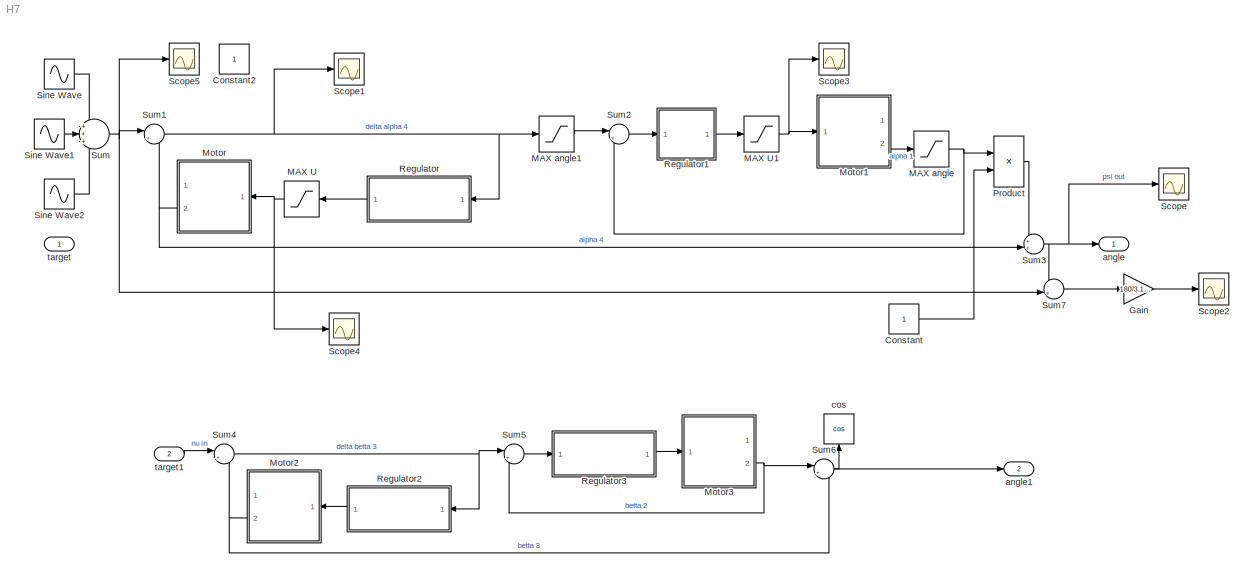
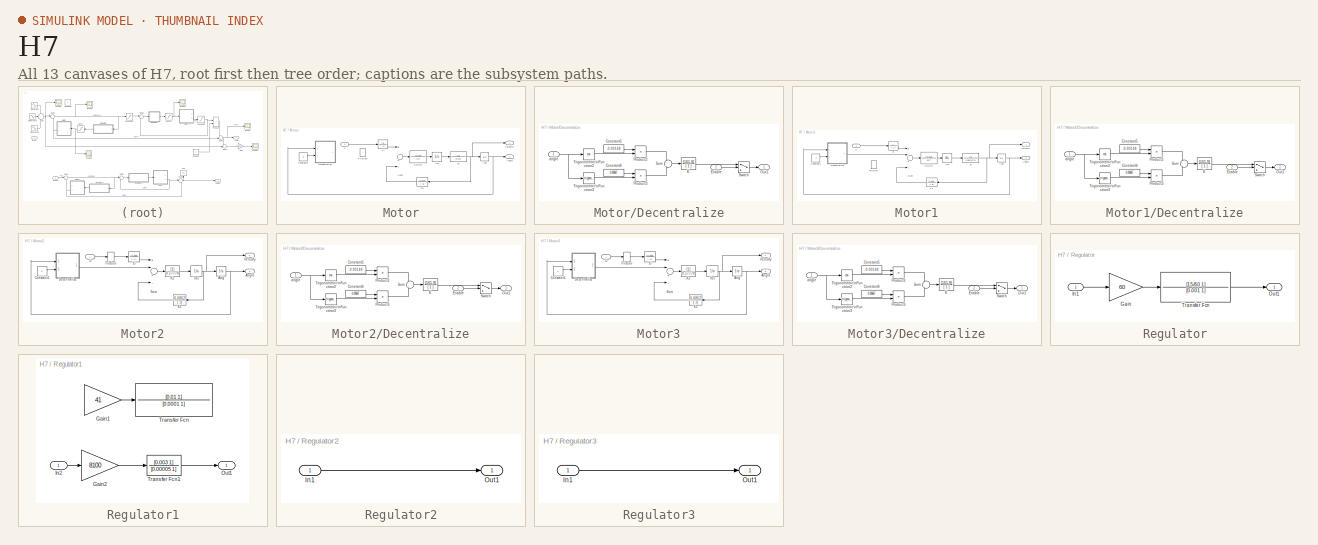
[diagram: thumbnail index - all 13 canvases of the model, root first then tree order]
MODEL H7
KIND model
BLOCK [Constant] Constant
  OutDataType = fixdt(1, 16)
  OutScaling = 2^0
BLOCK [Constant] Constant2
  OutDataType = fixdt(1, 16)
  OutScaling = 2^0
BLOCK [Gain] Gain
  Gain = 180/3.14*60*60
  OutDataType = fixdt(1, 16)
  OutDataTypeMode = Inherit via internal rule
  OutDataTypeStr = Inherit: Inherit via internal rule
  OutScaling = 2^0
  ParamDataTypeStr = Inherit: Inherit via internal rule
  ParameterDataType = fixdt(1, 16)
  ParameterDataTypeMode = Inherit via internal rule
  ParameterScaling = 2^0
  SaturateOnIntegerOverflow = off
BLOCK [Saturate] MAX U
  LowerLimit = -27
  UpperLimit = 27
BLOCK [Saturate] MAX U1
  LowerLimit = -12
  UpperLimit = 12
BLOCK [Saturate] MAX angle
  LowerLimit = -4/180*3.14
  UpperLimit = 4/180*3.14
BLOCK [Saturate] MAX angle1
  LowerLimit = -3/180*3.14
  UpperLimit = 3/180*3.14
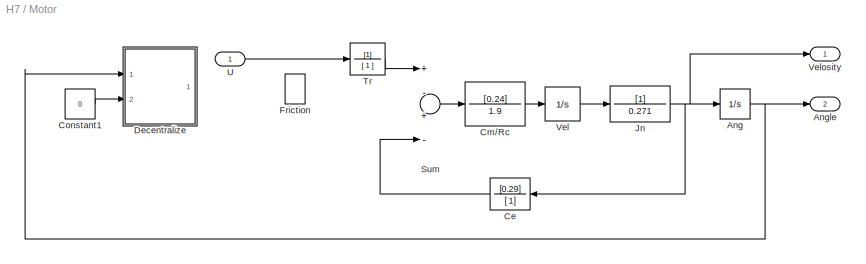
BLOCK [SubSystem] Motor
  FunctionWithSeparateData = off
  MaskHideContents = off
  MinAlgLoopOccurrences = off
  Opaque = off
  Ports = [1, 2]
  PropExecContextOutsideSubsystem = off
  RTWSystemCode = Auto
  RequestExecContextInheritance = off
  TreatAsAtomicUnit = on
BLOCK [Integrator] Motor/Ang
  Ports = [1, 1]
BLOCK [Outport] Motor/Angle
  IconDisplay = Port number
  OutDataType = fixdt(1, 16)
  OutScaling = 2^0
  Port = 2
BLOCK [TransferFcn] Motor/Ce
  Denominator = [ 1]
  Numerator = [0.29]
BLOCK [TransferFcn] Motor/Cm//Rc
  Denominator = 1.9
  Numerator = [0.24]
BLOCK [Constant] Motor/Constant1
  OutDataType = fixdt(1, 16)
  OutScaling = 2^0
  Value = 0
BLOCK [SubSystem] Motor/Decentralize
  FunctionWithSeparateData = off
  MaskHideContents = off
  MinAlgLoopOccurrences = off
  Opaque = off
  Ports = [2, 1]
  PropExecContextOutsideSubsystem = off
  RTWSystemCode = Auto
  RequestExecContextInheritance = off
  TreatAsAtomicUnit = on
BLOCK [Constant] Motor/Decentralize/Constant5
  Value = -0.00148
BLOCK [Constant] Motor/Decentralize/Constant6
  Value = 0.00667
BLOCK [Inport] Motor/Decentralize/Enable
  IconDisplay = Port number
  OutDataType = fixdt(1, 16)
  OutScaling = 2^0
  Port = 2
BLOCK [TransferFcn] Motor/Decentralize/K
  Denominator = [ 1 ]
  Numerator = [161.9]
BLOCK [Outport] Motor/Decentralize/Out1
  IconDisplay = Port number
  OutDataType = fixdt(1, 16)
  OutScaling = 2^0
BLOCK [Product] Motor/Decentralize/Product2
  InputSameDT = off
  OutDataTypeMode = Inherit via internal rule
  OutDataTypeStr = Inherit: Inherit via internal rule
  Ports = [2, 1]
  SaturateOnIntegerOverflow = off
BLOCK [Product] Motor/Decentralize/Product3
  InputSameDT = off
  OutDataTypeMode = Inherit via internal rule
  OutDataTypeStr = Inherit: Inherit via internal rule
  Ports = [2, 1]
  SaturateOnIntegerOverflow = off
BLOCK [Sum] Motor/Decentralize/Sum
  IconShape = round
  InputSameDT = off
  Inputs = +|-
  OutDataType = fixdt(1, 16)
  OutDataTypeMode = Inherit via internal rule
  OutDataTypeStr = Inherit: Inherit via internal rule
  OutScaling = 2^0
  Ports = [2, 1]
  SaturateOnIntegerOverflow = off
BLOCK [Switch] Motor/Decentralize/Switch
  Criteria = u2 > Threshold
  InputSameDT = off
  OutDataType = fixdt(1, 16)
  OutScaling = 2^0
  SaturateOnIntegerOverflow = off
BLOCK [Trigonometry] Motor/Decentralize/Trigonometric\nFunction2
  Operator = cos
  Ports = [1, 1]
BLOCK [Trigonometry] Motor/Decentralize/Trigonometric\nFunction3
  Ports = [1, 1]
BLOCK [Inport] Motor/Decentralize/angle
  IconDisplay = Port number
  OutDataType = fixdt(1, 16)
  OutScaling = 2^0
BLOCK [DeadZone] Motor/Friction
  LowerValue = -1.4
  UpperValue = 1.4
BLOCK [TransferFcn] Motor/Jn
  Denominator = 0.271
BLOCK [Sum] Motor/Sum
  InputSameDT = off
  Inputs = +-+-
  OutDataTypeMode = Inherit via internal rule
  OutDataTypeStr = Inherit: Inherit via internal rule
  Ports = [4, 1]
  SaturateOnIntegerOverflow = off
BLOCK [TransferFcn] Motor/Tr
  Denominator = [ 1 ]
BLOCK [Inport] Motor/U
  IconDisplay = Port number
  OutDataType = fixdt(1, 16)
  OutScaling = 2^0
BLOCK [Integrator] Motor/Vel
  Ports = [1, 1]
BLOCK [Outport] Motor/Velosity
  IconDisplay = Port number
  OutDataType = fixdt(1, 16)
  OutScaling = 2^0
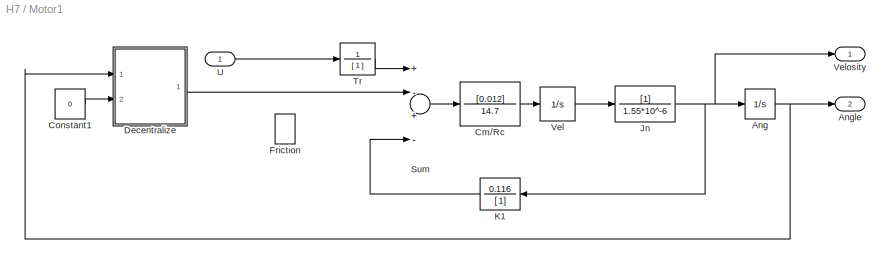
BLOCK [SubSystem] Motor1
  FunctionWithSeparateData = off
  MaskHideContents = off
  MinAlgLoopOccurrences = off
  Opaque = off
  Ports = [1, 2]
  PropExecContextOutsideSubsystem = off
  RTWSystemCode = Auto
  RequestExecContextInheritance = off
  TreatAsAtomicUnit = on
BLOCK [Integrator] Motor1/Ang
  Ports = [1, 1]
BLOCK [Outport] Motor1/Angle
  IconDisplay = Port number
  OutDataType = fixdt(1, 16)
  OutScaling = 2^0
  Port = 2
BLOCK [TransferFcn] Motor1/Cm//Rc
  Denominator = 14.7
  Numerator = [0.012]
BLOCK [Constant] Motor1/Constant1
  OutDataType = fixdt(1, 16)
  OutScaling = 2^0
  Value = 0
BLOCK [SubSystem] Motor1/Decentralize
  FunctionWithSeparateData = off
  MaskHideContents = off
  MinAlgLoopOccurrences = off
  Opaque = off
  Ports = [2, 1]
  PropExecContextOutsideSubsystem = off
  RTWSystemCode = Auto
  RequestExecContextInheritance = off
  TreatAsAtomicUnit = on
BLOCK [Constant] Motor1/Decentralize/Constant5
  Value = -0.00148
BLOCK [Constant] Motor1/Decentralize/Constant6
  Value = 0.00667
BLOCK [Inport] Motor1/Decentralize/Enable
  IconDisplay = Port number
  OutDataType = fixdt(1, 16)
  OutScaling = 2^0
  Port = 2
BLOCK [TransferFcn] Motor1/Decentralize/K
  Denominator = [ 1 ]
  Numerator = [161.9]
BLOCK [Outport] Motor1/Decentralize/Out1
  IconDisplay = Port number
  OutDataType = fixdt(1, 16)
  OutScaling = 2^0
BLOCK [Product] Motor1/Decentralize/Product2
  InputSameDT = off
  OutDataTypeMode = Inherit via internal rule
  OutDataTypeStr = Inherit: Inherit via internal rule
  Ports = [2, 1]
  SaturateOnIntegerOverflow = off
BLOCK [Product] Motor1/Decentralize/Product3
  InputSameDT = off
  OutDataTypeMode = Inherit via internal rule
  OutDataTypeStr = Inherit: Inherit via internal rule
  Ports = [2, 1]
  SaturateOnIntegerOverflow = off
BLOCK [Sum] Motor1/Decentralize/Sum
  IconShape = round
  InputSameDT = off
  Inputs = +|-
  OutDataType = fixdt(1, 16)
  OutDataTypeMode = Inherit via internal rule
  OutDataTypeStr = Inherit: Inherit via internal rule
  OutScaling = 2^0
  Ports = [2, 1]
  SaturateOnIntegerOverflow = off
BLOCK [Switch] Motor1/Decentralize/Switch
  Criteria = u2 > Threshold
  InputSameDT = off
  OutDataType = fixdt(1, 16)
  OutScaling = 2^0
  SaturateOnIntegerOverflow = off
BLOCK [Trigonometry] Motor1/Decentralize/Trigonometric\nFunction2
  Operator = cos
  Ports = [1, 1]
BLOCK [Trigonometry] Motor1/Decentralize/Trigonometric\nFunction3
  Ports = [1, 1]
BLOCK [Inport] Motor1/Decentralize/angle
  IconDisplay = Port number
  OutDataType = fixdt(1, 16)
  OutScaling = 2^0
BLOCK [DeadZone] Motor1/Friction
  LowerValue = -1.4
  UpperValue = 1.4
BLOCK [TransferFcn] Motor1/Jn
  Denominator = 1.55*10^-6
BLOCK [TransferFcn] Motor1/K1
  Denominator = [ 1]
  Numerator = 0.116
BLOCK [Sum] Motor1/Sum
  InputSameDT = off
  Inputs = +-+-
  OutDataTypeMode = Inherit via internal rule
  OutDataTypeStr = Inherit: Inherit via internal rule
  Ports = [4, 1]
  SaturateOnIntegerOverflow = off
BLOCK [TransferFcn] Motor1/Tr
  Denominator = [ 1 ]
  Numerator = 1
BLOCK [Inport] Motor1/U
  IconDisplay = Port number
  OutDataType = fixdt(1, 16)
  OutScaling = 2^0
BLOCK [Integrator] Motor1/Vel
  Ports = [1, 1]
BLOCK [Outport] Motor1/Velosity
  IconDisplay = Port number
  OutDataType = fixdt(1, 16)
  OutScaling = 2^0
BLOCK [SubSystem] Motor2
  FunctionWithSeparateData = off
  MaskHideContents = off
  MinAlgLoopOccurrences = off
  Opaque = off
  Ports = [1, 2]
  PropExecContextOutsideSubsystem = off
  RTWSystemCode = Auto
  RequestExecContextInheritance = off
  TreatAsAtomicUnit = on
BLOCK [Integrator] Motor2/Ang
  Ports = [1, 1]
BLOCK [Outport] Motor2/Angle
  IconDisplay = Port number
  OutDataType = fixdt(1, 16)
  OutScaling = 2^0
  Port = 2
BLOCK [Constant] Motor2/Constant1
  OutDataType = fixdt(1, 16)
  OutScaling = 2^0
BLOCK [SubSystem] Motor2/Decentralize
  FunctionWithSeparateData = off
  MaskHideContents = off
  MinAlgLoopOccurrences = off
  Opaque = off
  Ports = [2, 1]
  PropExecContextOutsideSubsystem = off
  RTWSystemCode = Auto
  RequestExecContextInheritance = off
  TreatAsAtomicUnit = on
BLOCK [Constant] Motor2/Decentralize/Constant5
  Value = -0.00148
BLOCK [Constant] Motor2/Decentralize/Constant6
  Value = 0.00667
BLOCK [Inport] Motor2/Decentralize/Enable
  IconDisplay = Port number
  OutDataType = fixdt(1, 16)
  OutScaling = 2^0
  Port = 2
BLOCK [TransferFcn] Motor2/Decentralize/K
  Denominator = [ 1 ]
  Numerator = [161.9]
BLOCK [Outport] Motor2/Decentralize/Out1
  IconDisplay = Port number
  OutDataType = fixdt(1, 16)
  OutScaling = 2^0
BLOCK [Product] Motor2/Decentralize/Product2
  InputSameDT = off
  OutDataTypeMode = Inherit via internal rule
  OutDataTypeStr = Inherit: Inherit via internal rule
  Ports = [2, 1]
  SaturateOnIntegerOverflow = off
BLOCK [Product] Motor2/Decentralize/Product3
  InputSameDT = off
  OutDataTypeMode = Inherit via internal rule
  OutDataTypeStr = Inherit: Inherit via internal rule
  Ports = [2, 1]
  SaturateOnIntegerOverflow = off
BLOCK [Sum] Motor2/Decentralize/Sum
  IconShape = round
  InputSameDT = off
  Inputs = +|-
  OutDataType = fixdt(1, 16)
  OutDataTypeMode = Inherit via internal rule
  OutDataTypeStr = Inherit: Inherit via internal rule
  OutScaling = 2^0
  Ports = [2, 1]
  SaturateOnIntegerOverflow = off
BLOCK [Switch] Motor2/Decentralize/Switch
  Criteria = u2 > Threshold
  InputSameDT = off
  OutDataType = fixdt(1, 16)
  OutScaling = 2^0
  SaturateOnIntegerOverflow = off
BLOCK [Trigonometry] Motor2/Decentralize/Trigonometric\nFunction2
  Operator = cos
  Ports = [1, 1]
BLOCK [Trigonometry] Motor2/Decentralize/Trigonometric\nFunction3
  Ports = [1, 1]
BLOCK [Inport] Motor2/Decentralize/angle
  IconDisplay = Port number
  OutDataType = fixdt(1, 16)
  OutScaling = 2^0
BLOCK [DeadZone] Motor2/Friction
  LowerValue = -1.4
  UpperValue = 1.4
BLOCK [TransferFcn] Motor2/K1
  Denominator = [ 1]
  Numerator = [0.6802]
BLOCK [TransferFcn] Motor2/K2
  Denominator = 0.17778
BLOCK [Sum] Motor2/Sum
  InputSameDT = off
  Inputs = +-+-
  OutDataTypeMode = Inherit via internal rule
  OutDataTypeStr = Inherit: Inherit via internal rule
  Ports = [4, 1]
  SaturateOnIntegerOverflow = off
BLOCK [TransferFcn] Motor2/Tr
  Denominator = [ 1 ]
  Numerator = [0.356]
BLOCK [Inport] Motor2/U
  IconDisplay = Port number
  OutDataType = fixdt(1, 16)
  OutScaling = 2^0
BLOCK [Integrator] Motor2/Vel
  Ports = [1, 1]
BLOCK [Outport] Motor2/Velosity
  IconDisplay = Port number
  OutDataType = fixdt(1, 16)
  OutScaling = 2^0
BLOCK [SubSystem] Motor3
  FunctionWithSeparateData = off
  MaskHideContents = off
  MinAlgLoopOccurrences = off
  Opaque = off
  Ports = [1, 2]
  PropExecContextOutsideSubsystem = off
  RTWSystemCode = Auto
  RequestExecContextInheritance = off
  TreatAsAtomicUnit = on
BLOCK [Integrator] Motor3/Ang
  Ports = [1, 1]
BLOCK [Outport] Motor3/Angle
  IconDisplay = Port number
  OutDataType = fixdt(1, 16)
  OutScaling = 2^0
  Port = 2
BLOCK [Constant] Motor3/Constant1
  OutDataType = fixdt(1, 16)
  OutScaling = 2^0
BLOCK [SubSystem] Motor3/Decentralize
  FunctionWithSeparateData = off
  MaskHideContents = off
  MinAlgLoopOccurrences = off
  Opaque = off
  Ports = [2, 1]
  PropExecContextOutsideSubsystem = off
  RTWSystemCode = Auto
  RequestExecContextInheritance = off
  TreatAsAtomicUnit = on
BLOCK [Constant] Motor3/Decentralize/Constant5
  Value = -0.00148
BLOCK [Constant] Motor3/Decentralize/Constant6
  Value = 0.00667
BLOCK [Inport] Motor3/Decentralize/Enable
  IconDisplay = Port number
  OutDataType = fixdt(1, 16)
  OutScaling = 2^0
  Port = 2
BLOCK [TransferFcn] Motor3/Decentralize/K
  Denominator = [ 1 ]
  Numerator = [161.9]
BLOCK [Outport] Motor3/Decentralize/Out1
  IconDisplay = Port number
  OutDataType = fixdt(1, 16)
  OutScaling = 2^0
BLOCK [Product] Motor3/Decentralize/Product2
  InputSameDT = off
  OutDataTypeMode = Inherit via internal rule
  OutDataTypeStr = Inherit: Inherit via internal rule
  Ports = [2, 1]
  SaturateOnIntegerOverflow = off
BLOCK [Product] Motor3/Decentralize/Product3
  InputSameDT = off
  OutDataTypeMode = Inherit via internal rule
  OutDataTypeStr = Inherit: Inherit via internal rule
  Ports = [2, 1]
  SaturateOnIntegerOverflow = off
BLOCK [Sum] Motor3/Decentralize/Sum
  IconShape = round
  InputSameDT = off
  Inputs = +|-
  OutDataType = fixdt(1, 16)
  OutDataTypeMode = Inherit via internal rule
  OutDataTypeStr = Inherit: Inherit via internal rule
  OutScaling = 2^0
  Ports = [2, 1]
  SaturateOnIntegerOverflow = off
BLOCK [Switch] Motor3/Decentralize/Switch
  Criteria = u2 > Threshold
  InputSameDT = off
  OutDataType = fixdt(1, 16)
  OutScaling = 2^0
  SaturateOnIntegerOverflow = off
BLOCK [Trigonometry] Motor3/Decentralize/Trigonometric\nFunction2
  Operator = cos
  Ports = [1, 1]
BLOCK [Trigonometry] Motor3/Decentralize/Trigonometric\nFunction3
  Ports = [1, 1]
BLOCK [Inport] Motor3/Decentralize/angle
  IconDisplay = Port number
  OutDataType = fixdt(1, 16)
  OutScaling = 2^0
BLOCK [DeadZone] Motor3/Friction
  LowerValue = -1.4
  UpperValue = 1.4
BLOCK [TransferFcn] Motor3/K1
  Denominator = [ 1]
  Numerator = [0.6802]
BLOCK [TransferFcn] Motor3/K2
  Denominator = 0.17778
BLOCK [Sum] Motor3/Sum
  InputSameDT = off
  Inputs = +-+-
  OutDataTypeMode = Inherit via internal rule
  OutDataTypeStr = Inherit: Inherit via internal rule
  Ports = [4, 1]
  SaturateOnIntegerOverflow = off
BLOCK [TransferFcn] Motor3/Tr
  Denominator = [ 1 ]
  Numerator = [0.356]
BLOCK [Inport] Motor3/U
  IconDisplay = Port number
  OutDataType = fixdt(1, 16)
  OutScaling = 2^0
BLOCK [Integrator] Motor3/Vel
  Ports = [1, 1]
BLOCK [Outport] Motor3/Velosity
  IconDisplay = Port number
  OutDataType = fixdt(1, 16)
  OutScaling = 2^0
BLOCK [Product] Product
  InputSameDT = off
  OutDataType = fixdt(1, 16)
  OutDataTypeMode = Inherit via internal rule
  OutDataTypeStr = Inherit: Inherit via internal rule
  OutScaling = 2^0
  Ports = [2, 1]
  SaturateOnIntegerOverflow = off
BLOCK [SubSystem] Regulator
  FunctionWithSeparateData = off
  MaskHideContents = off
  MinAlgLoopOccurrences = off
  Opaque = off
  Ports = [1, 1]
  PropExecContextOutsideSubsystem = off
  RTWSystemCode = Auto
  RequestExecContextInheritance = off
BLOCK [Gain] Regulator/Gain
  Gain = 60
  OutDataType = fixdt(1, 16)
  OutDataTypeMode = Inherit via internal rule
  OutDataTypeStr = Inherit: Inherit via internal rule
  OutScaling = 2^0
  ParamDataTypeStr = Inherit: Inherit via internal rule
  ParameterDataType = fixdt(1, 16)
  ParameterDataTypeMode = Inherit via internal rule
  ParameterScaling = 2^0
  SaturateOnIntegerOverflow = off
BLOCK [Inport] Regulator/In1
  IconDisplay = Port number
  OutDataType = fixdt(1, 16)
  OutScaling = 2^0
BLOCK [Outport] Regulator/Out1
  IconDisplay = Port number
  OutDataType = fixdt(1, 16)
  OutScaling = 2^0
BLOCK [TransferFcn] Regulator/Transfer Fcn
  Denominator = [0.001 1]
  Numerator = [15/60 1]
BLOCK [SubSystem] Regulator1
  FunctionWithSeparateData = off
  MaskHideContents = off
  MinAlgLoopOccurrences = off
  Opaque = off
  Ports = [1, 1]
  PropExecContextOutsideSubsystem = off
  RTWSystemCode = Auto
  RequestExecContextInheritance = off
BLOCK [Gain] Regulator1/Gain1
  Gain = 41
  OutDataType = fixdt(1, 16)
  OutDataTypeMode = Inherit via internal rule
  OutDataTypeStr = Inherit: Inherit via internal rule
  OutScaling = 2^0
  ParamDataTypeStr = Inherit: Inherit via internal rule
  ParameterDataType = fixdt(1, 16)
  ParameterDataTypeMode = Inherit via internal rule
  ParameterScaling = 2^0
  SaturateOnIntegerOverflow = off
BLOCK [Gain] Regulator1/Gain2
  Gain = 8100
  OutDataType = fixdt(1, 16)
  OutDataTypeMode = Inherit via internal rule
  OutDataTypeStr = Inherit: Inherit via internal rule
  OutScaling = 2^0
  ParamDataTypeStr = Inherit: Inherit via internal rule
  ParameterDataType = fixdt(1, 16)
  ParameterDataTypeMode = Inherit via internal rule
  ParameterScaling = 2^0
  SaturateOnIntegerOverflow = off
BLOCK [Inport] Regulator1/In2
  IconDisplay = Port number
  OutDataType = fixdt(1, 16)
  OutScaling = 2^0
BLOCK [Outport] Regulator1/Out1
  IconDisplay = Port number
  OutDataType = fixdt(1, 16)
  OutScaling = 2^0
BLOCK [TransferFcn] Regulator1/Transfer Fcn
  Denominator = [0.0001 1]
  Numerator = [0.01 1]
BLOCK [TransferFcn] Regulator1/Transfer Fcn1
  Denominator = [0.00005 1]
  Numerator = [0.003 1]
BLOCK [SubSystem] Regulator2
  FunctionWithSeparateData = off
  MaskHideContents = off
  MinAlgLoopOccurrences = off
  Opaque = off
  Ports = [1, 1]
  PropExecContextOutsideSubsystem = off
  RTWSystemCode = Auto
  RequestExecContextInheritance = off
BLOCK [Inport] Regulator2/In1
  IconDisplay = Port number
  OutDataType = fixdt(1, 16)
  OutScaling = 2^0
BLOCK [Outport] Regulator2/Out1
  IconDisplay = Port number
  OutDataType = fixdt(1, 16)
  OutScaling = 2^0
BLOCK [SubSystem] Regulator3
  FunctionWithSeparateData = off
  MaskHideContents = off
  MinAlgLoopOccurrences = off
  Opaque = off
  Ports = [1, 1]
  PropExecContextOutsideSubsystem = off
  RTWSystemCode = Auto
  RequestExecContextInheritance = off
BLOCK [Inport] Regulator3/In1
  IconDisplay = Port number
  OutDataType = fixdt(1, 16)
  OutScaling = 2^0
BLOCK [Outport] Regulator3/Out1
  IconDisplay = Port number
  OutDataType = fixdt(1, 16)
  OutScaling = 2^0
BLOCK [Scope] Scope
  DataFormat = StructureWithTime
  Floating = off
  MaxDataPoints = 50000
  NumInputPorts = 1
  Ports = [1]
  SampleTime = 0
  YMax = 0.875
  YMin = 0.805
  ZoomMode = yonly
BLOCK [Scope] Scope1
  DataFormat = StructureWithTime
  Floating = off
  MaxDataPoints = 50000
  NumInputPorts = 1
  Ports = [1]
  SampleTime = 0
  SaveName = ScopeData1
  YMax = 0.025
  YMin = -0.375
  ZoomMode = yonly
BLOCK [Scope] Scope2
  DataFormat = StructureWithTime
  Floating = off
  MaxDataPoints = 50000
  NumInputPorts = 1
  Ports = [1]
  SampleTime = 0
  SaveName = ScopeData2
  YMax = 65000
  YMin = 25000
  ZoomMode = yonly
BLOCK [Scope] Scope3
  DataFormat = StructureWithTime
  Floating = off
  MaxDataPoints = 50000
  NumInputPorts = 1
  Ports = [1]
  SampleTime = 0
  SaveName = ScopeData3
  YMax = -27
  YMin = -27
  ZoomMode = xonly
BLOCK [Scope] Scope4
  DataFormat = StructureWithTime
  Floating = off
  MaxDataPoints = 50000
  NumInputPorts = 1
  Ports = [1]
  SampleTime = 0
  SaveName = ScopeData4
  YMax = 0.025
  YMin = -0.375
  ZoomMode = yonly
BLOCK [Scope] Scope5
  DataFormat = StructureWithTime
  Floating = off
  MaxDataPoints = 50000
  NumInputPorts = 1
  Ports = [1]
  SampleTime = 0
  SaveName = ScopeData5
  YMax = 0.025
  YMin = -0.375
  ZoomMode = yonly
BLOCK [Sin] Sine Wave
  Amplitude = 0.8
  Bias = 0
  Frequency = 1
  Offset = 0
  Phase = 0
  Ports = [0, 1]
  SampleTime = 0
  Samples = 10
BLOCK [Sin] Sine Wave1
  Amplitude = 1/60
  Bias = 0
  Frequency = 2*pi*14
  Offset = 0
  Phase = 0
  Ports = [0, 1]
  SampleTime = 0
  Samples = 10
BLOCK [Sin] Sine Wave2
  Amplitude = 1/60
  Bias = 0
  Frequency = 2*pi*4
  Offset = 0
  Phase = 0
  Ports = [0, 1]
  SampleTime = 0
  Samples = 10
BLOCK [Sum] Sum
  IconShape = round
  InputSameDT = off
  Inputs = +++
  OutDataType = fixdt(1, 16)
  OutDataTypeMode = Inherit via internal rule
  OutDataTypeStr = Inherit: Inherit via internal rule
  OutScaling = 2^0
  Ports = [3, 1]
  SaturateOnIntegerOverflow = off
BLOCK [Sum] Sum1
  IconShape = round
  InputSameDT = off
  Inputs = |+-
  OutDataType = fixdt(1, 16)
  OutDataTypeMode = Inherit via internal rule
  OutDataTypeStr = Inherit: Inherit via internal rule
  OutScaling = 2^0
  Ports = [2, 1]
  SaturateOnIntegerOverflow = off
BLOCK [Sum] Sum2
  IconShape = round
  InputSameDT = off
  Inputs = |+-
  OutDataType = fixdt(1, 16)
  OutDataTypeMode = Inherit via internal rule
  OutDataTypeStr = Inherit: Inherit via internal rule
  OutScaling = 2^0
  Ports = [2, 1]
  SaturateOnIntegerOverflow = off
BLOCK [Sum] Sum3
  IconShape = round
  InputSameDT = off
  Inputs = ++|
  OutDataType = fixdt(1, 16)
  OutDataTypeMode = Inherit via internal rule
  OutDataTypeStr = Inherit: Inherit via internal rule
  OutScaling = 2^0
  Ports = [2, 1]
  SaturateOnIntegerOverflow = off
BLOCK [Sum] Sum4
  IconShape = round
  InputSameDT = off
  Inputs = |+-
  OutDataType = fixdt(1, 16)
  OutDataTypeMode = Inherit via internal rule
  OutDataTypeStr = Inherit: Inherit via internal rule
  OutScaling = 2^0
  Ports = [2, 1]
  SaturateOnIntegerOverflow = off
BLOCK [Sum] Sum5
  IconShape = round
  InputSameDT = off
  Inputs = |+-
  OutDataType = fixdt(1, 16)
  OutDataTypeMode = Inherit via internal rule
  OutDataTypeStr = Inherit: Inherit via internal rule
  OutScaling = 2^0
  Ports = [2, 1]
  SaturateOnIntegerOverflow = off
BLOCK [Sum] Sum6
  IconShape = round
  InputSameDT = off
  Inputs = |++
  OutDataType = fixdt(1, 16)
  OutDataTypeMode = Inherit via internal rule
  OutDataTypeStr = Inherit: Inherit via internal rule
  OutScaling = 2^0
  Ports = [2, 1]
  SaturateOnIntegerOverflow = off
BLOCK [Sum] Sum7
  IconShape = round
  InputSameDT = off
  Inputs = -+|
  OutDataType = fixdt(1, 16)
  OutDataTypeMode = Inherit via internal rule
  OutDataTypeStr = Inherit: Inherit via internal rule
  OutScaling = 2^0
  Ports = [2, 1]
  SaturateOnIntegerOverflow = off
BLOCK [Outport] angle
  IconDisplay = Port number
  OutDataType = fixdt(1, 16)
  OutScaling = 2^0
BLOCK [Outport] angle1
  IconDisplay = Port number
  OutDataType = fixdt(1, 16)
  OutScaling = 2^0
  Port = 2
BLOCK [Trigonometry] cos
  Operator = cos
  Ports = [1, 1]
BLOCK [Inport] target
  IconDisplay = Port number
  OutDataType = fixdt(1, 16)
  OutScaling = 2^0
BLOCK [Inport] target1
  IconDisplay = Port number
  OutDataType = fixdt(1, 16)
  OutScaling = 2^0
  Port = 2
LINE Constant:1 -> Product:2
LINE Gain:1 -> Scope2:1
NET MAX U1:1 -> Motor1:1, Scope3:1
NET MAX U:1 -> Motor:1, Scope4:1
LINE MAX angle1:1 -> Sum2:1
NET MAX angle:1 -> Product:1, Sum2:2
NET Motor/Ang:1 -> Motor/Angle:1, Motor/Decentralize:1
LINE Motor/Ce:1 -> Motor/Sum:4
LINE Motor/Cm//Rc:1 -> Motor/Vel:1
LINE Motor/Constant1:1 -> Motor/Decentralize:2
LINE Motor/Decentralize/Constant5:1 -> Motor/Decentralize/Product2:1
LINE Motor/Decentralize/Constant6:1 -> Motor/Decentralize/Product3:1
LINE Motor/Decentralize/Enable:1 -> Motor/Decentralize/Switch:2
LINE Motor/Decentralize/K:1 -> Motor/Decentralize/Switch:1
LINE Motor/Decentralize/Product2:1 -> Motor/Decentralize/Sum:1
LINE Motor/Decentralize/Product3:1 -> Motor/Decentralize/Sum:2
LINE Motor/Decentralize/Sum:1 -> Motor/Decentralize/K:1
LINE Motor/Decentralize/Switch:1 -> Motor/Decentralize/Out1:1
LINE Motor/Decentralize/Trigonometric\nFunction2:1 -> Motor/Decentralize/Product2:2
LINE Motor/Decentralize/Trigonometric\nFunction3:1 -> Motor/Decentralize/Product3:2
NET Motor/Decentralize/angle:1 -> Motor/Decentralize/Trigonometric\nFunction2:1, Motor/Decentralize/Trigonometric\nFunction3:1
NET Motor/Jn:1 -> Motor/Ang:1, Motor/Ce:1, Motor/Velosity:1
LINE Motor/Sum:1 -> Motor/Cm//Rc:1
LINE Motor/Tr:1 -> Motor/Sum:1
LINE Motor/U:1 -> Motor/Tr:1
LINE Motor/Vel:1 -> Motor/Jn:1
NET Motor1/Ang:1 -> Motor1/Angle:1, Motor1/Decentralize:1
LINE Motor1/Cm//Rc:1 -> Motor1/Vel:1
LINE Motor1/Constant1:1 -> Motor1/Decentralize:2
LINE Motor1/Decentralize/Constant5:1 -> Motor1/Decentralize/Product2:1
LINE Motor1/Decentralize/Constant6:1 -> Motor1/Decentralize/Product3:1
LINE Motor1/Decentralize/Enable:1 -> Motor1/Decentralize/Switch:2
LINE Motor1/Decentralize/K:1 -> Motor1/Decentralize/Switch:1
LINE Motor1/Decentralize/Product2:1 -> Motor1/Decentralize/Sum:1
LINE Motor1/Decentralize/Product3:1 -> Motor1/Decentralize/Sum:2
LINE Motor1/Decentralize/Sum:1 -> Motor1/Decentralize/K:1
LINE Motor1/Decentralize/Switch:1 -> Motor1/Decentralize/Out1:1
LINE Motor1/Decentralize/Trigonometric\nFunction2:1 -> Motor1/Decentralize/Product2:2
LINE Motor1/Decentralize/Trigonometric\nFunction3:1 -> Motor1/Decentralize/Product3:2
NET Motor1/Decentralize/angle:1 -> Motor1/Decentralize/Trigonometric\nFunction2:1, Motor1/Decentralize/Trigonometric\nFunction3:1
LINE Motor1/Decentralize:1 -> Motor1/Sum:2
NET Motor1/Jn:1 -> Motor1/Ang:1, Motor1/K1:1, Motor1/Velosity:1
LINE Motor1/K1:1 -> Motor1/Sum:4
LINE Motor1/Sum:1 -> Motor1/Cm//Rc:1
LINE Motor1/Tr:1 -> Motor1/Sum:1
LINE Motor1/U:1 -> Motor1/Tr:1
LINE Motor1/Vel:1 -> Motor1/Jn:1
LINE Motor1:2 -> MAX angle:1
NET Motor2/Ang:1 -> Motor2/Angle:1, Motor2/Decentralize:1
LINE Motor2/Constant1:1 -> Motor2/Decentralize:2
LINE Motor2/Decentralize/Constant5:1 -> Motor2/Decentralize/Product2:1
LINE Motor2/Decentralize/Constant6:1 -> Motor2/Decentralize/Product3:1
LINE Motor2/Decentralize/Enable:1 -> Motor2/Decentralize/Switch:2
LINE Motor2/Decentralize/K:1 -> Motor2/Decentralize/Switch:1
LINE Motor2/Decentralize/Product2:1 -> Motor2/Decentralize/Sum:1
LINE Motor2/Decentralize/Product3:1 -> Motor2/Decentralize/Sum:2
LINE Motor2/Decentralize/Sum:1 -> Motor2/Decentralize/K:1
LINE Motor2/Decentralize/Switch:1 -> Motor2/Decentralize/Out1:1
LINE Motor2/Decentralize/Trigonometric\nFunction2:1 -> Motor2/Decentralize/Product2:2
LINE Motor2/Decentralize/Trigonometric\nFunction3:1 -> Motor2/Decentralize/Product3:2
NET Motor2/Decentralize/angle:1 -> Motor2/Decentralize/Trigonometric\nFunction2:1, Motor2/Decentralize/Trigonometric\nFunction3:1
LINE Motor2/Decentralize:1 -> Motor2/Sum:2
LINE Motor2/Friction:1 -> Motor2/Tr:1
LINE Motor2/K1:1 -> Motor2/Sum:4
LINE Motor2/K2:1 -> Motor2/Vel:1
LINE Motor2/Sum:1 -> Motor2/K2:1
LINE Motor2/Tr:1 -> Motor2/Sum:1
LINE Motor2/U:1 -> Motor2/Friction:1
NET Motor2/Vel:1 -> Motor2/Ang:1, Motor2/K1:1, Motor2/Velosity:1
NET Motor2:2 -> Sum4:2, Sum6:2
NET Motor3/Ang:1 -> Motor3/Angle:1, Motor3/Decentralize:1
LINE Motor3/Constant1:1 -> Motor3/Decentralize:2
LINE Motor3/Decentralize/Constant5:1 -> Motor3/Decentralize/Product2:1
LINE Motor3/Decentralize/Constant6:1 -> Motor3/Decentralize/Product3:1
LINE Motor3/Decentralize/Enable:1 -> Motor3/Decentralize/Switch:2
LINE Motor3/Decentralize/K:1 -> Motor3/Decentralize/Switch:1
LINE Motor3/Decentralize/Product2:1 -> Motor3/Decentralize/Sum:1
LINE Motor3/Decentralize/Product3:1 -> Motor3/Decentralize/Sum:2
LINE Motor3/Decentralize/Sum:1 -> Motor3/Decentralize/K:1
LINE Motor3/Decentralize/Switch:1 -> Motor3/Decentralize/Out1:1
LINE Motor3/Decentralize/Trigonometric\nFunction2:1 -> Motor3/Decentralize/Product2:2
LINE Motor3/Decentralize/Trigonometric\nFunction3:1 -> Motor3/Decentralize/Product3:2
NET Motor3/Decentralize/angle:1 -> Motor3/Decentralize/Trigonometric\nFunction2:1, Motor3/Decentralize/Trigonometric\nFunction3:1
LINE Motor3/Decentralize:1 -> Motor3/Sum:2
LINE Motor3/Friction:1 -> Motor3/Tr:1
LINE Motor3/K1:1 -> Motor3/Sum:4
LINE Motor3/K2:1 -> Motor3/Vel:1
LINE Motor3/Sum:1 -> Motor3/K2:1
LINE Motor3/Tr:1 -> Motor3/Sum:1
LINE Motor3/U:1 -> Motor3/Friction:1
NET Motor3/Vel:1 -> Motor3/Ang:1, Motor3/K1:1, Motor3/Velosity:1
NET Motor3:2 -> Sum5:2, Sum6:1
NET Motor:2 -> Sum1:2, Sum3:2
LINE Product:1 -> Sum3:1
LINE Regulator/Gain:1 -> Regulator/Transfer Fcn:1
LINE Regulator/In1:1 -> Regulator/Gain:1
LINE Regulator/Transfer Fcn:1 -> Regulator/Out1:1
LINE Regulator1/Gain1:1 -> Regulator1/Transfer Fcn:1
LINE Regulator1/Gain2:1 -> Regulator1/Transfer Fcn1:1
LINE Regulator1/In2:1 -> Regulator1/Gain2:1
LINE Regulator1/Transfer Fcn1:1 -> Regulator1/Out1:1
LINE Regulator1:1 -> MAX U1:1
LINE Regulator2/In1:1 -> Regulator2/Out1:1
LINE Regulator2:1 -> Motor2:1
LINE Regulator3/In1:1 -> Regulator3/Out1:1
LINE Regulator3:1 -> Motor3:1
LINE Regulator:1 -> MAX U:1
LINE Sine Wave1:1 -> Sum:2
LINE Sine Wave2:1 -> Sum:3
LINE Sine Wave:1 -> Sum:1
NET Sum1:1 -> MAX angle1:1, Regulator:1, Scope1:1
LINE Sum2:1 -> Regulator1:1
NET Sum3:1 -> Scope:1, Sum7:1, angle:1
NET Sum4:1 -> Regulator2:1, Sum5:1
LINE Sum5:1 -> Regulator3:1
NET Sum6:1 -> angle1:1, cos:1
LINE Sum7:1 -> Gain:1
NET Sum:1 -> Scope5:1, Sum1:1, Sum7:2
LINE target1:1 -> Sum4:1
note: NET lines group one-source signal fan-out (src -> all destinations, sorted); 1:1 wires keep LINE
